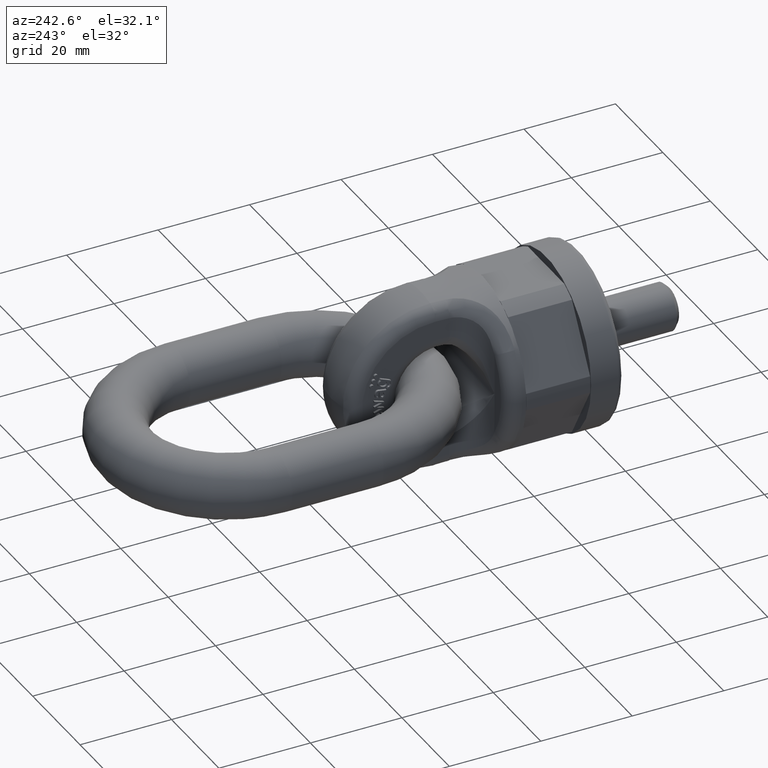
[diagram: clean part render]
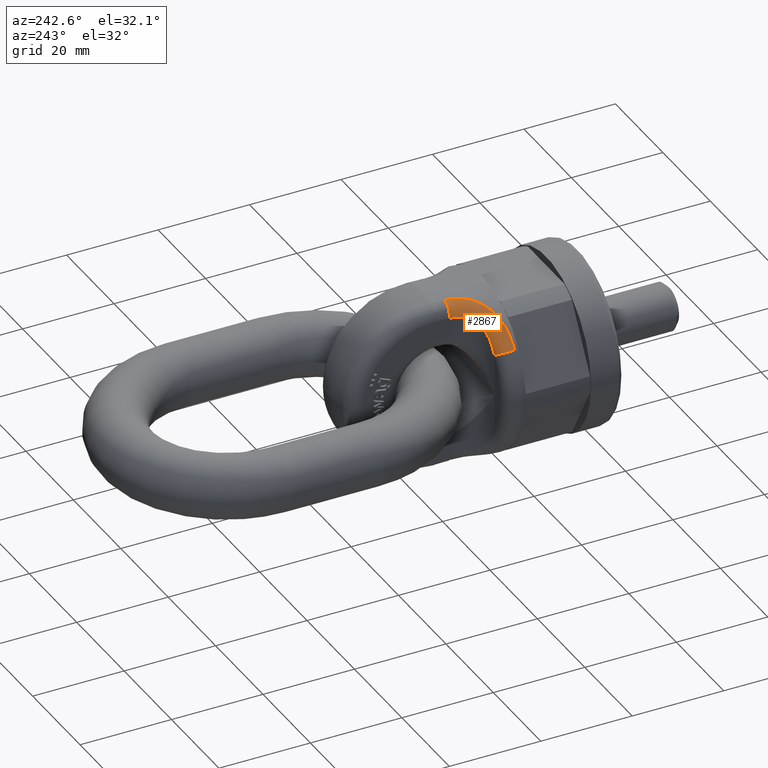
[diagram: same view with one face highlighted and labeled with its STEP entity id]
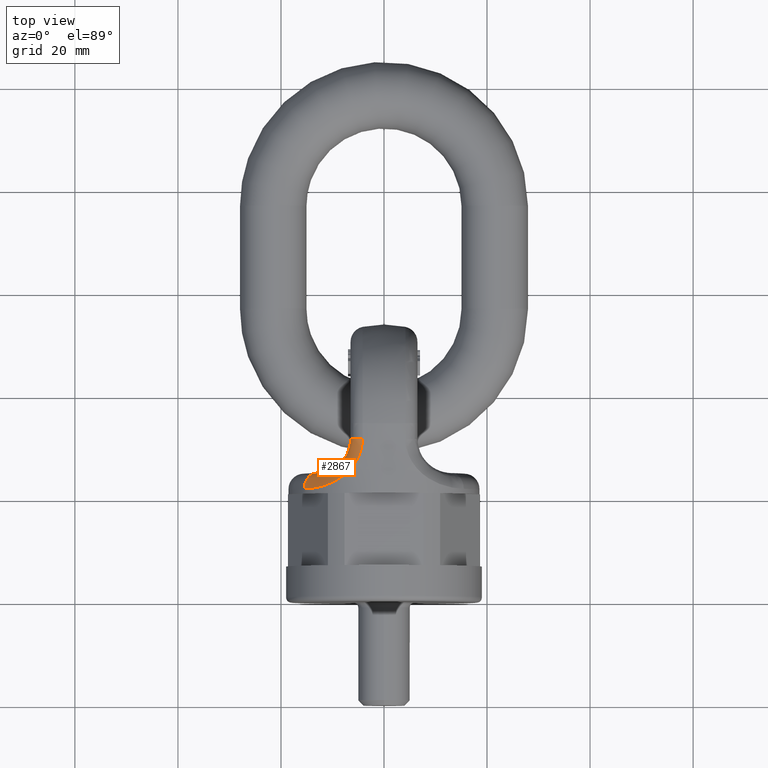
[diagram: same view with one face highlighted and labeled with its STEP entity id]
A machine part, auxiliary view. The second image highlights one B-rep face of the part: STEP entity #2867.
A second angle (top view) of the same face is appended — the face is thin or edge-on in the first view.
In plain terms, the highlighted face is a freeform B-spline surface patch.
Its self-contained STEP definition (entity closure, byte-faithful):
#209=(
BOUNDED_SURFACE()
B_SPLINE_SURFACE(3,2,((#9570,#9571,#9572),(#9573,#9574,#9575),(#9576,#9577,
#9578),(#9579,#9580,#9581),(#9582,#9583,#9584),(#9585,#9586,#9587),(#9588,
#9589,#9590),(#9591,#9592,#9593),(#9594,#9595,#9596),(#9597,#9598,#9599),
(#9600,#9601,#9602),(#9603,#9604,#9605)),.UNSPECIFIED.,.F.,.F.,.F.)
B_SPLINE_SURFACE_WITH_KNOTS((4,2,2,2,2,4),(3,3),(0.,0.25,0.375,0.5,0.75,
1.),(0.,1.),.UNSPECIFIED.)
GEOMETRIC_REPRESENTATION_ITEM()
RATIONAL_B_SPLINE_SURFACE(((1.,0.698015727056309,1.),(1.,0.723038021223422,
1.),(1.,0.746703631731299,1.),(1.,0.772763482428099,1.),(1.,0.779678733054916,
1.),(1.,0.789736643708091,1.),(1.,0.792829776549587,1.),(1.,0.796804527701404,
1.),(1.,0.792444660815776,1.),(1.,0.783631438062324,1.),(1.,0.779653905810994,
1.),(1.,0.780972408280259,1.)))
REPRESENTATION_ITEM('')
SURFACE()
);
#355=B_SPLINE_CURVE_WITH_KNOTS('',3,(#7063,#7064,#7065,#7066,#7067,#7068,
#7069,#7070,#7071,#7072),.UNSPECIFIED.,.F.,.F.,(4,2,2,2,4),(0.,0.25,0.5,
0.75,1.),.UNSPECIFIED.);
#537=B_SPLINE_CURVE_WITH_KNOTS('',3,(#8590,#8591,#8592,#8593,#8594,#8595,
#8596,#8597,#8598,#8599),.UNSPECIFIED.,.F.,.F.,(4,2,2,2,4),(0.,0.25,0.5,
0.75,1.),.UNSPECIFIED.);
#2003=FACE_OUTER_BOUND('',#3326,.T.);
#2867=ADVANCED_FACE('',(#2003),#209,.T.);
#3326=EDGE_LOOP('',(#4493,#4494,#4495,#4496));
#4493=ORIENTED_EDGE('',*,*,#5517,.F.);
#4494=ORIENTED_EDGE('',*,*,#5342,.F.);
#4495=ORIENTED_EDGE('',*,*,#5518,.F.);
#4496=ORIENTED_EDGE('',*,*,#5068,.F.);
#4655=VERTEX_POINT('',#7062);
#4656=VERTEX_POINT('',#7073);
#4784=VERTEX_POINT('',#8376);
#4834=VERTEX_POINT('',#8589);
#5068=EDGE_CURVE('',#4655,#4656,#355,.T.);
#5342=EDGE_CURVE('',#4834,#4784,#537,.T.);
#5517=EDGE_CURVE('',#4784,#4655,#5583,.T.);
#5518=EDGE_CURVE('',#4656,#4834,#5584,.T.);
#5583=CIRCLE('',#5782,3.);
#5584=CIRCLE('',#5783,3.);
#5782=AXIS2_PLACEMENT_3D('',#9568,#6523,#6524);
#5783=AXIS2_PLACEMENT_3D('',#9569,#6525,#6526);
#6523=DIRECTION('',(-6.1357898319674E-17,0.999657015924003,0.0261887478493644));
#6524=DIRECTION('',(2.31296463463574E-15,0.0261887478493645,-0.999657015924003));
#6525=DIRECTION('',(-0.558577371624383,4.79623529392022E-16,-0.829452421727247));
#6526=DIRECTION('',(-0.829452421727248,0.,0.558577371624383));
#7062=CARTESIAN_POINT('',(-4.15950741497045,31.4233557313077,18.4517766458426));
#7063=CARTESIAN_POINT('',(-4.15950741497045,31.4233557313077,18.4517766458426));
#7064=CARTESIAN_POINT('',(-4.16120898645446,29.816569344349,18.4092989064835));
#7065=CARTESIAN_POINT('',(-4.66522994803899,28.2515926450828,18.2682301448783));
#7066=CARTESIAN_POINT('',(-6.33779244076713,25.6305014725102,17.6863306953856));
#7067=CARTESIAN_POINT('',(-7.49877836215921,24.5697693410119,17.2298785735647));
#7068=CARTESIAN_POINT('',(-9.93697532082878,23.0451607554856,15.9027703847803));
#7069=CARTESIAN_POINT('',(-11.2117463757236,22.5674577020305,15.0342662238501));
#7070=CARTESIAN_POINT('',(-13.5571584499843,22.0067867917593,12.9383350146668));
#7071=CARTESIAN_POINT('',(-14.5963560638232,21.9233557313077,11.7531228799004));
#7072=CARTESIAN_POINT('',(-15.4875450511606,21.9233557313077,10.4297630352043));
#7073=CARTESIAN_POINT('',(-15.4875450511606,21.9233557313077,10.4297630352043));
#8376=CARTESIAN_POINT('',(-6.50000000000003,31.5,15.5261697642408));
#8589=CARTESIAN_POINT('',(-13.,25.,8.75457788886272));
#8590=CARTESIAN_POINT('',(-13.,25.,8.75457788886272));
#8591=CARTESIAN_POINT('',(-12.543234206899,25.,9.74589353869672));
#8592=CARTESIAN_POINT('',(-12.001789199936,25.0431297891709,10.6829116689343));
#8593=CARTESIAN_POINT('',(-10.7214827336039,25.3766057788517,12.4179509670953));
#8594=CARTESIAN_POINT('',(-9.98451250766773,25.6715979797211,13.1955476487339));
#8595=CARTESIAN_POINT('',(-8.51154745203598,26.7128057642207,14.4120554955105));
#8596=CARTESIAN_POINT('',(-7.79349446904808,27.4689694652163,14.8355156095421));
#8597=CARTESIAN_POINT('',(-6.78772173770688,29.317225204463,15.3610208751525));
#8598=CARTESIAN_POINT('',(-6.50000000000003,30.4007705916971,15.4840813751898));
#8599=CARTESIAN_POINT('',(-6.50000000000003,31.5,15.5261697642409));
#9568=CARTESIAN_POINT('',(-3.50000000000003,31.5,15.5261697642409));
#9569=CARTESIAN_POINT('',(-13.,22.,8.75457788886272));
#9570=CARTESIAN_POINT('',(-15.4875450511606,21.9233557313077,10.4297630352043));
#9571=CARTESIAN_POINT('',(-15.552763275971,25.,10.4736828835794));
#9572=CARTESIAN_POINT('',(-13.,25.,8.75457788886272));
#9573=CARTESIAN_POINT('',(-14.5369014592727,21.9233557274061,11.8414092447492));
#9574=CARTESIAN_POINT('',(-14.7047870313875,24.793032124171,11.7234051640985));
#9575=CARTESIAN_POINT('',(-12.4538966269929,25.,9.93978227009798));
#9576=CARTESIAN_POINT('',(-13.3996812256587,22.0211023690871,13.1131239591633));
#9577=CARTESIAN_POINT('',(-13.6996169131528,24.6805961688084,12.876908731667));
#9578=CARTESIAN_POINT('',(-11.8011665946333,25.0668792798624,11.0071526582216));
#9579=CARTESIAN_POINT('',(-11.5108887501428,22.5113521856053,14.7443850447128));
#9580=CARTESIAN_POINT('',(-12.0987443568132,24.8775971800675,14.354811517291));
#9581=CARTESIAN_POINT('',(-10.7171774909905,25.4023133627759,12.378088230995));
#9582=CARTESIAN_POINT('',(-10.8668439553115,22.7286461271883,15.229220731407));
#9583=CARTESIAN_POINT('',(-11.568043065715,24.9981993056623,14.7934659127115));
#9584=CARTESIAN_POINT('',(-10.3476025139796,25.5509881664858,12.7858331667908));
#9585=CARTESIAN_POINT('',(-9.57260679508014,23.2990307599411,16.0912347857087));
#9586=CARTESIAN_POINT('',(-10.5281775646895,25.3686584668363,15.5776109198344));
#9587=CARTESIAN_POINT('',(-9.60496428694586,25.9412513344975,13.5115582490521));
#9588=CARTESIAN_POINT('',(-8.91938089011949,23.6563816071972,16.4684899994985));
#9589=CARTESIAN_POINT('',(-10.0119843705227,25.6221932466361,15.9283129411641));
#9590=CARTESIAN_POINT('',(-9.23015937885849,26.1857545470738,13.8296213200071));
#9591=CARTESIAN_POINT('',(-7.09728245345261,24.9077477310571,17.4066936289205));
#9592=CARTESIAN_POINT('',(-8.61005298158271,26.5409341394885,16.8135360873266));
#9593=CARTESIAN_POINT('',(-8.184667825998,27.0419524200561,14.622166126662));
#9594=CARTESIAN_POINT('',(-6.02127688857268,26.0201322027743,17.8018468671465));
#9595=CARTESIAN_POINT('',(-7.81797070217788,27.4031467850905,17.223381578922));
#9596=CARTESIAN_POINT('',(-7.56720525156429,27.8030575861268,14.9584716087662));
#9597=CARTESIAN_POINT('',(-4.55698609315371,28.5620006419116,18.2986102188261));
#9598=CARTESIAN_POINT('',(-6.77574737363416,29.320907253006,17.7584954404963));
#9599=CARTESIAN_POINT('',(-6.72705958362187,29.5422307279215,15.3859685577695));
#9600=CARTESIAN_POINT('',(-4.16102701992014,29.988400136088,18.4138415036909));
#9601=CARTESIAN_POINT('',(-6.50948858511845,30.3737441390082,17.8932555487576));
#9602=CARTESIAN_POINT('',(-6.50000000000003,30.5181408843346,15.4885753656317));
#9603=CARTESIAN_POINT('',(-4.15950741497045,31.4233557313077,18.4517766458426));
#9604=CARTESIAN_POINT('',(-6.50000000000004,31.4371683726787,17.9245309778022));
#9605=CARTESIAN_POINT('',(-6.50000000000003,31.5,15.5261697642408));